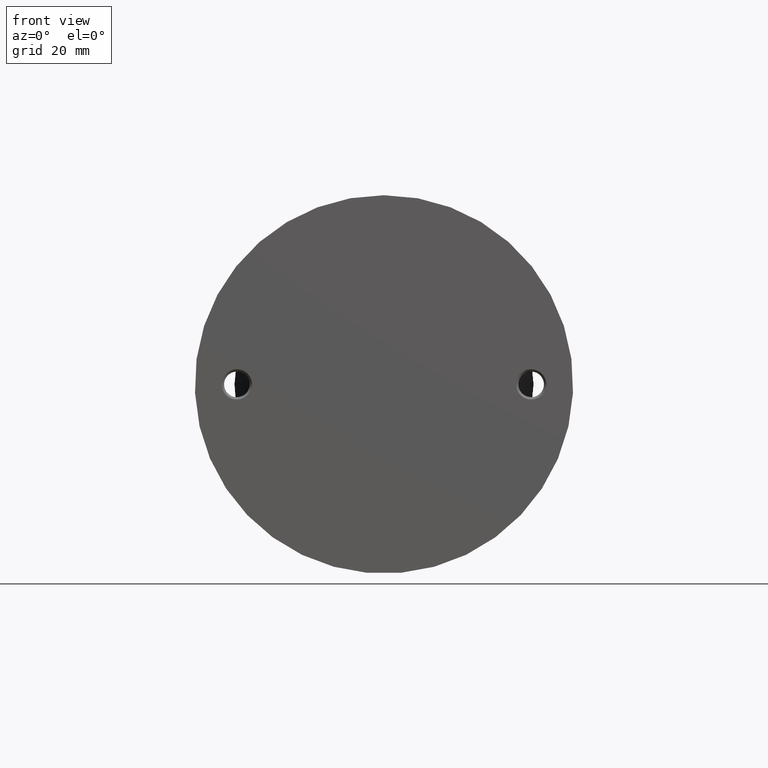
[diagram: clean part render]
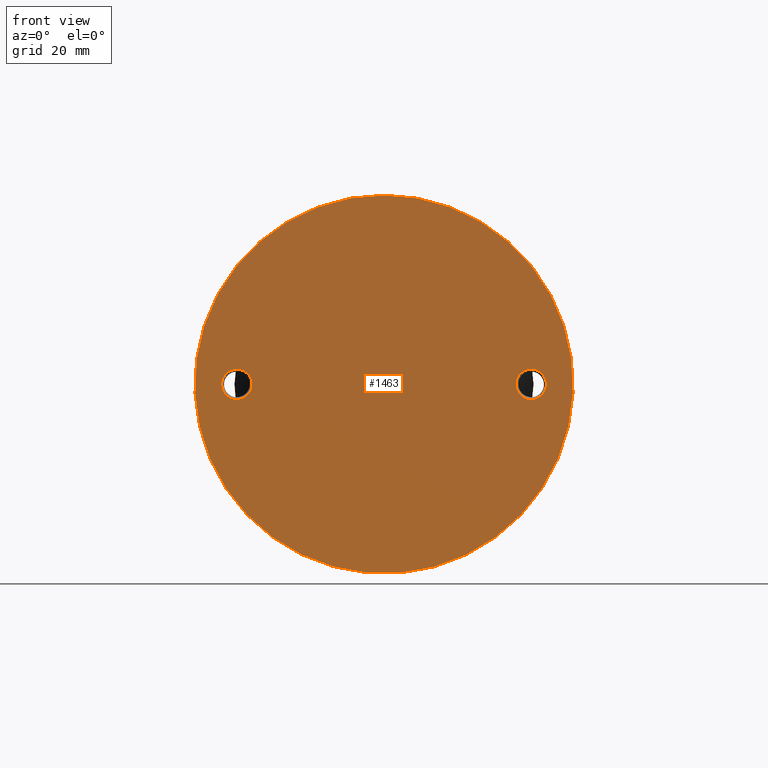
[diagram: same view with one face highlighted and labeled with its STEP entity id]
A machine part, front view. The second image highlights one B-rep face of the part: STEP entity #1463.
In plain terms, the highlighted planar face has unit normal (0, 1, 0).
Its self-contained STEP definition (entity closure, byte-faithful):
#22 = FACE_BOUND ( 'NONE', #5856, .T. ) ;
#137 = CIRCLE ( 'NONE', #7540, 3.250000000000016875 ) ;
#227 = AXIS2_PLACEMENT_3D ( 'NONE', #2302, #8292, #3183 ) ;
#305 = AXIS2_PLACEMENT_3D ( 'NONE', #7325, #4728, #1392 ) ;
#703 = VERTEX_POINT ( 'NONE', #1858 ) ;
#974 = CARTESIAN_POINT ( 'NONE',  ( -31.50000000000000000, 0.000000000000000000, 3.250000000000016875 ) ) ;
#1392 = DIRECTION ( 'NONE',  ( 0.000000000000000000, 0.000000000000000000, 1.000000000000000000 ) ) ;
#1463 = ADVANCED_FACE ( 'NONE', ( #22, #3112, #10993 ), #1770, .F. ) ;
#1770 = PLANE ( 'NONE',  #1899 ) ;
#1858 = CARTESIAN_POINT ( 'NONE',  ( 31.50000000000000000, 0.000000000000000000, 3.250000000000008882 ) ) ;
#1892 = CARTESIAN_POINT ( 'NONE',  ( 0.000000000000000000, 0.000000000000000000, 40.50000000000000000 ) ) ;
#1899 = AXIS2_PLACEMENT_3D ( 'NONE', #4201, #8059, #9577 ) ;
#2302 = CARTESIAN_POINT ( 'NONE',  ( 0.000000000000000000, 0.000000000000000000, 0.000000000000000000 ) ) ;
#2503 = ORIENTED_EDGE ( 'NONE', *, *, #7320, .T. ) ;
#2682 = VERTEX_POINT ( 'NONE', #1892 ) ;
#3112 = FACE_BOUND ( 'NONE', #3448, .T. ) ;
#3183 = DIRECTION ( 'NONE',  ( 0.000000000000000000, 0.000000000000000000, 1.000000000000000000 ) ) ;
#3448 = EDGE_LOOP ( 'NONE', ( #2503 ) ) ;
#3805 = VERTEX_POINT ( 'NONE', #974 ) ;
#4201 = CARTESIAN_POINT ( 'NONE',  ( 0.000000000000000000, 0.000000000000000000, 0.000000000000000000 ) ) ;
#4370 = ORIENTED_EDGE ( 'NONE', *, *, #6974, .T. ) ;
#4454 = CIRCLE ( 'NONE', #227, 40.50000000000000000 ) ;
#4479 = EDGE_CURVE ( 'NONE', #2682, #2682, #4454, .T. ) ;
#4599 = EDGE_LOOP ( 'NONE', ( #5341 ) ) ;
#4728 = DIRECTION ( 'NONE',  ( 0.000000000000000000, 1.000000000000000000, 0.000000000000000000 ) ) ;
#5341 = ORIENTED_EDGE ( 'NONE', *, *, #4479, .F. ) ;
#5856 = EDGE_LOOP ( 'NONE', ( #4370 ) ) ;
#6974 = EDGE_CURVE ( 'NONE', #703, #703, #137, .T. ) ;
#7320 = EDGE_CURVE ( 'NONE', #3805, #3805, #9861, .T. ) ;
#7325 = CARTESIAN_POINT ( 'NONE',  ( -31.50000000000000000, 0.000000000000000000, 0.000000000000000000 ) ) ;
#7540 = AXIS2_PLACEMENT_3D ( 'NONE', #8444, #7669, #9289 ) ;
#7669 = DIRECTION ( 'NONE',  ( 0.000000000000000000, 1.000000000000000000, 0.000000000000000000 ) ) ;
#8059 = DIRECTION ( 'NONE',  ( 0.000000000000000000, 1.000000000000000000, 0.000000000000000000 ) ) ;
#8292 = DIRECTION ( 'NONE',  ( 0.000000000000000000, 1.000000000000000000, 0.000000000000000000 ) ) ;
#8444 = CARTESIAN_POINT ( 'NONE',  ( 31.50000000000000000, 0.000000000000000000, -7.715274834628325378E-15 ) ) ;
#9289 = DIRECTION ( 'NONE',  ( 0.000000000000000000, 0.000000000000000000, 1.000000000000000000 ) ) ;
#9577 = DIRECTION ( 'NONE',  ( 0.000000000000000000, -0.000000000000000000, 1.000000000000000000 ) ) ;
#9861 = CIRCLE ( 'NONE', #305, 3.250000000000016875 ) ;
#10993 = FACE_OUTER_BOUND ( 'NONE', #4599, .T. ) ;